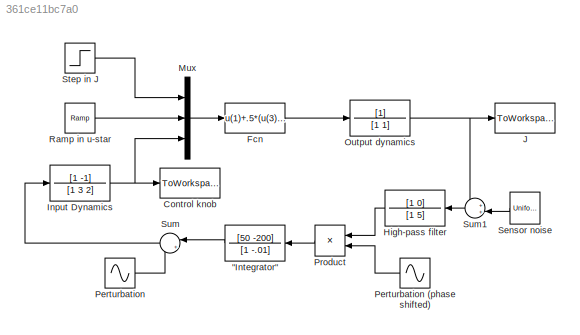
MODEL slx_361ce11bc7a0
KIND model
CONFIG AbsTol = auto
CONFIG EnableMultiTasking = on
CONFIG FixedStep = auto
CONFIG MaxStep = auto
CONFIG MinStep = auto
CONFIG RelTol = 1e-3
CONFIG SampleTimeConstraint = Unconstrained
CONFIG Solver = ode45
CONFIG SolverName = ode45
CONFIG StartTime = 0.0
CONFIG StopTime = 100
BLOCK [TransferFcn] "Integrator" 
  Denominator = [1 -.01]
  Numerator = [50 -200]
BLOCK [ToWorkspace] Control knob
  MaxDataPoints = inf
  Ports = [1]
  SampleTime = -1
  VariableName = theta
BLOCK [Fcn] Fcn
  Expr = u(1)+.5*(u(3)-u(2))^2
BLOCK [TransferFcn] High-pass filter
  Denominator = [1 5]
  Numerator = [1 0]
BLOCK [TransferFcn] Input Dynamics
  Denominator = [1 3 2]
  Numerator = [1 -1]
BLOCK [ToWorkspace] J
  MaxDataPoints = inf
  Ports = [1]
  SampleTime = -1
  VariableName = y
BLOCK [Mux] Mux
  DisplayOption = bar
  Inputs = 3
  Ports = [3, 1]
BLOCK [TransferFcn] Output dynamics
  Denominator = [1 1]
BLOCK [Sin] Perturbation
  Amplitude = .05
  Frequency = 5
  Ports = [0, 1]
  SampleTime = 0
BLOCK [Sin] Perturbation (phase shifted)
  Frequency = 5
  Phase = .7955
  Ports = [0, 1]
  SampleTime = 0
BLOCK [Product] Product
  InputSameDT = off
  OutDataTypeStr = Inherit: Inherit via internal rule
  Ports = [2, 1]
  SaturateOnIntegerOverflow = off
BLOCK [Reference] Ramp in u-star  REF=simulink/Sources/Ramp
  Ports = [0, 1]
  SourceBlock = simulink/Sources/Ramp
  SourceType = Ramp
BLOCK [UniformRandomNumber] Sensor noise
  Maximum = .005
  Minimum = -.005
  SampleTime = .001
BLOCK [Step] Step in J
  After = .05
  SampleTime = 0
  Time = 10
BLOCK [Sum] Sum
  IconShape = round
  InputSameDT = off
  Inputs = |++
  OutDataTypeStr = Inherit: Inherit via internal rule
  Ports = [2, 1]
  SaturateOnIntegerOverflow = off
BLOCK [Sum] Sum1
  IconShape = round
  InputSameDT = off
  Inputs = ++|
  OutDataTypeStr = Inherit: Inherit via internal rule
  Ports = [2, 1]
  SaturateOnIntegerOverflow = off
LINE "Integrator" :1 -> Sum:1
LINE Fcn:1 -> Output dynamics:1
LINE High-pass filter:1 -> Product:1
NET Input Dynamics:1 -> Control knob:1, Mux:3
LINE Mux:1 -> Fcn:1
NET Output dynamics:1 -> J:1, Sum1:1
LINE Perturbation (phase shifted):1 -> Product:2
LINE Perturbation:1 -> Sum:2
LINE Product:1 -> "Integrator" :1
LINE Ramp in u-star:1 -> Mux:2
LINE Sensor noise:1 -> Sum1:2
LINE Step in J:1 -> Mux:1
LINE Sum1:1 -> High-pass filter:1
LINE Sum:1 -> Input Dynamics:1
note: NET lines group one-source signal fan-out (src -> all destinations, sorted); 1:1 wires keep LINE
